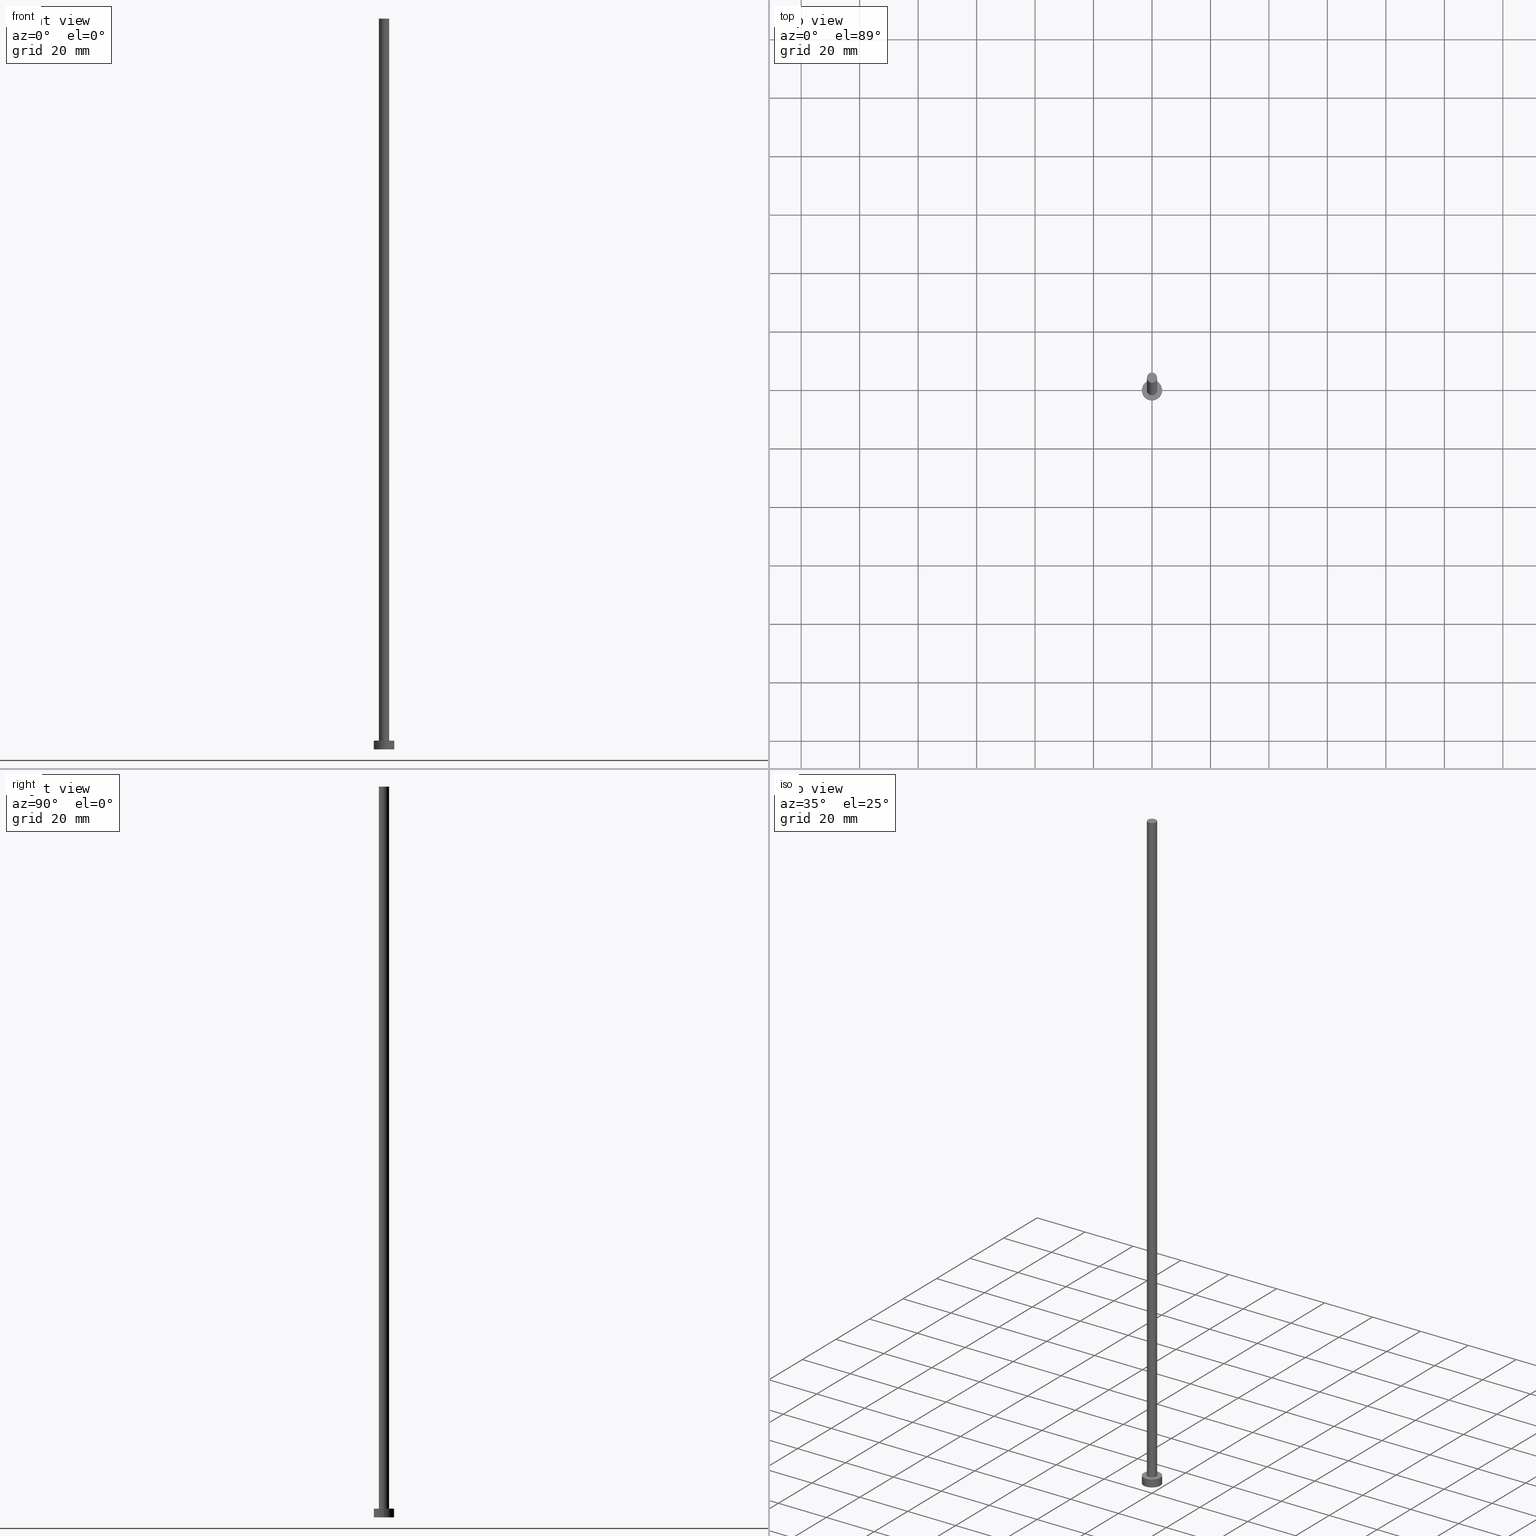
[diagram: canonical four-view strip — front | top / right | iso, engineering-drawing reading convention]
A machine part, canonical four-view strip (front | top / right | iso — engineering-drawing reading convention). The complete STEP part file that produces these views, byte-faithful:
ISO-10303-21;
HEADER;
FILE_DESCRIPTION (( 'STEP AP203' ),
    '1' );
FILE_NAME ('c4b5.STEP',
    '2023-02-13T13:58:57',
    ( '' ),
    ( '' ),
    'SwSTEP 2.0',
    'SolidWorks 2019',
    '' );
FILE_SCHEMA (( 'CONFIG_CONTROL_DESIGN' ));
ENDSEC;

DATA;
#1 = APPROVAL_DATE_TIME ( #178, #17 ) ;
#2 =( NAMED_UNIT ( * ) SI_UNIT ( $, .STERADIAN. ) SOLID_ANGLE_UNIT ( ) );
#3 = ADVANCED_FACE ( 'NONE', ( #167, #128 ), #22, .T. ) ;
#4 = AXIS2_PLACEMENT_3D ( 'NONE', #110, #68, #210 ) ;
#5 = DIRECTION ( 'NONE',  ( 0.000000000000000000, 0.000000000000000000, 1.000000000000000000 ) ) ;
#6 = ORIENTED_EDGE ( 'NONE', *, *, #171, .T. ) ;
#7 = ORIENTED_EDGE ( 'NONE', *, *, #29, .T. ) ;
#8 = DIRECTION ( 'NONE',  ( 1.000000000000000000, 0.000000000000000000, 0.000000000000000000 ) ) ;
#9 = DIRECTION ( 'NONE',  ( -0.000000000000000000, -0.000000000000000000, -1.000000000000000000 ) ) ;
#10 = CARTESIAN_POINT ( 'NONE',  ( -1.750000000000000000, 0.000000000000000000, 250.0000000000000000 ) ) ;
#11 = CYLINDRICAL_SURFACE ( 'NONE', #217, 1.750000000000000000 ) ;
#12 = FACE_OUTER_BOUND ( 'NONE', #200, .T. ) ;
#13 = CARTESIAN_POINT ( 'NONE',  ( -3.500000000000000444, 0.000000000000000000, 0.000000000000000000 ) ) ;
#14 = EDGE_CURVE ( 'NONE', #244, #45, #198, .T. ) ;
#15 = PERSON_AND_ORGANIZATION_ROLE ( 'design_supplier' ) ;
#16 = MECHANICAL_CONTEXT ( 'NONE', #81, 'mechanical' ) ;
#17 = APPROVAL ( #159, 'NEUR�EN�' ) ;
#18 = CC_DESIGN_APPROVAL ( #17, ( #101 ) ) ;
#19 = CALENDAR_DATE ( 2023, 13, 2 ) ;
#20 = EDGE_CURVE ( 'NONE', #219, #222, #117, .T. ) ;
#21 = AXIS2_PLACEMENT_3D ( 'NONE', #83, #165, #61 ) ;
#22 = PLANE ( 'NONE',  #65 ) ;
#23 = CC_DESIGN_APPROVAL ( #247, ( #169 ) ) ;
#24 = ORIENTED_EDGE ( 'NONE', *, *, #38, .F. ) ;
#25 = CARTESIAN_POINT ( 'NONE',  ( 0.000000000000000000, 0.000000000000000000, 3.000000000000000000 ) ) ;
#26 = AXIS2_PLACEMENT_3D ( 'NONE', #173, #136, #30 ) ;
#27 = EDGE_CURVE ( 'NONE', #220, #39, #57, .T. ) ;
#28 = DIRECTION ( 'NONE',  ( -0.000000000000000000, -0.000000000000000000, -1.000000000000000000 ) ) ;
#29 = EDGE_CURVE ( 'NONE', #107, #219, #92, .T. ) ;
#30 = DIRECTION ( 'NONE',  ( 1.000000000000000000, 0.000000000000000000, -0.000000000000000000 ) ) ;
#31 = CARTESIAN_POINT ( 'NONE',  ( 0.000000000000000000, 0.000000000000000000, 250.0000000000000000 ) ) ;
#32 = APPROVAL_PERSON_ORGANIZATION ( #213, #247, #218 ) ;
#33 = EDGE_CURVE ( 'NONE', #107, #62, #70, .T. ) ;
#34 = LINE ( 'NONE', #246, #212 ) ;
#35 = FACE_OUTER_BOUND ( 'NONE', #242, .T. ) ;
#36 = ADVANCED_FACE ( 'NONE', ( #111 ), #154, .T. ) ;
#37 = CALENDAR_DATE ( 2023, 13, 2 ) ;
#38 = EDGE_CURVE ( 'NONE', #62, #107, #193, .T. ) ;
#39 = VERTEX_POINT ( 'NONE', #90 ) ;
#40 = ORIENTED_EDGE ( 'NONE', *, *, #201, .T. ) ;
#41 = AXIS2_PLACEMENT_3D ( 'NONE', #67, #192, #130 ) ;
#42 = PRODUCT_DEFINITION_FORMATION_WITH_SPECIFIED_SOURCE ( 'LIBOVOLN�', '', #255, .NOT_KNOWN. ) ;
#43 = DIRECTION ( 'NONE',  ( 1.000000000000000000, 0.000000000000000000, 0.000000000000000000 ) ) ;
#44 = CC_DESIGN_PERSON_AND_ORGANIZATION_ASSIGNMENT ( #58, #113, ( #255 ) ) ;
#45 = VERTEX_POINT ( 'NONE', #10 ) ;
#46 = AXIS2_PLACEMENT_3D ( 'NONE', #187, #170, #156 ) ;
#47 = ORIENTED_EDGE ( 'NONE', *, *, #229, .F. ) ;
#48 = DIRECTION ( 'NONE',  ( 0.000000000000000000, 0.000000000000000000, 1.000000000000000000 ) ) ;
#49 = CARTESIAN_POINT ( 'NONE',  ( 3.500000000000000444, 4.286263797015737088E-16, 3.000000000000000000 ) ) ;
#50 = AXIS2_PLACEMENT_3D ( 'NONE', #25, #184, #8 ) ;
#51 = FACE_OUTER_BOUND ( 'NONE', #199, .T. ) ;
#52 = DIRECTION ( 'NONE',  ( 1.000000000000000000, 0.000000000000000000, 0.000000000000000000 ) ) ;
#53 = CARTESIAN_POINT ( 'NONE',  ( 0.000000000000000000, 0.000000000000000000, 3.000000000000000000 ) ) ;
#54 = APPLICATION_PROTOCOL_DEFINITION ( 'international standard', 'config_control_design', 1994, #81 ) ;
#55 = COORDINATED_UNIVERSAL_TIME_OFFSET ( 1, 0, .AHEAD. ) ;
#56 = COORDINATED_UNIVERSAL_TIME_OFFSET ( 1, 0, .AHEAD. ) ;
#57 = CIRCLE ( 'NONE', #50, 1.750000000000000000 ) ;
#58 = PERSON_AND_ORGANIZATION ( #80, #135 ) ;
#59 = APPROVAL_STATUS ( 'not_yet_approved' ) ;
#60 = CC_DESIGN_APPROVAL ( #182, ( #42 ) ) ;
#61 = DIRECTION ( 'NONE',  ( 1.000000000000000000, 0.000000000000000000, 0.000000000000000000 ) ) ;
#62 = VERTEX_POINT ( 'NONE', #228 ) ;
#63 = DATE_AND_TIME ( #37, #115 ) ;
#64 = ORIENTED_EDGE ( 'NONE', *, *, #27, .F. ) ;
#65 = AXIS2_PLACEMENT_3D ( 'NONE', #223, #5, #241 ) ;
#66 = ADVANCED_FACE ( 'NONE', ( #12 ), #174, .T. ) ;
#67 = CARTESIAN_POINT ( 'NONE',  ( 0.000000000000000000, 0.000000000000000000, 3.000000000000000000 ) ) ;
#68 = DIRECTION ( 'NONE',  ( 0.000000000000000000, 0.000000000000000000, 1.000000000000000000 ) ) ;
#69 = CARTESIAN_POINT ( 'NONE',  ( 0.000000000000000000, 0.000000000000000000, 3.000000000000000000 ) ) ;
#70 = CIRCLE ( 'NONE', #233, 3.500000000000000444 ) ;
#71 = PRODUCT_DEFINITION_SHAPE ( 'NONE', 'NONE',  #101 ) ;
#72 = DIRECTION ( 'NONE',  ( -1.000000000000000000, 0.000000000000000000, 0.000000000000000000 ) ) ;
#73 = EDGE_CURVE ( 'NONE', #39, #220, #237, .T. ) ;
#74 = CIRCLE ( 'NONE', #239, 3.500000000000000444 ) ;
#75 = DIRECTION ( 'NONE',  ( -0.000000000000000000, -0.000000000000000000, -1.000000000000000000 ) ) ;
#76 = APPROVAL_PERSON_ORGANIZATION ( #97, #17, #238 ) ;
#77 = APPROVAL_DATE_TIME ( #234, #182 ) ;
#78 = PERSON_AND_ORGANIZATION ( #80, #135 ) ;
#79 = PERSON_AND_ORGANIZATION_ROLE ( 'creator' ) ;
#80 = PERSON ( 'NEUR�EN�', 'NEUR�EN�', 'NEUR�EN�', ('NEUR�EN�'), ('NEUR�EN�'), ('NEUR�EN�') ) ;
#81 = APPLICATION_CONTEXT ( 'configuration controlled 3d designs of mechanical parts and assemblies' ) ;
#82 = DATE_AND_TIME ( #179, #194 ) ;
#83 = CARTESIAN_POINT ( 'NONE',  ( 0.000000000000000000, 0.000000000000000000, 0.000000000000000000 ) ) ;
#84 = CIRCLE ( 'NONE', #146, 1.750000000000000000 ) ;
#85 = ORIENTED_EDGE ( 'NONE', *, *, #73, .F. ) ;
#86 = ORIENTED_EDGE ( 'NONE', *, *, #229, .T. ) ;
#87 = CC_DESIGN_SECURITY_CLASSIFICATION ( #169, ( #42 ) ) ;
#88 = ORIENTED_EDGE ( 'NONE', *, *, #151, .T. ) ;
#89 = ADVANCED_FACE ( 'NONE', ( #51 ), #227, .F. ) ;
#90 = CARTESIAN_POINT ( 'NONE',  ( -1.750000000000000000, 0.000000000000000000, 3.000000000000000000 ) ) ;
#91 = FACE_OUTER_BOUND ( 'NONE', #185, .T. ) ;
#92 = LINE ( 'NONE', #225, #127 ) ;
#93 = DIRECTION ( 'NONE',  ( 0.000000000000000000, 0.000000000000000000, 1.000000000000000000 ) ) ;
#94 = APPLICATION_CONTEXT ( 'configuration controlled 3d designs of mechanical parts and assemblies' ) ;
#95 = CARTESIAN_POINT ( 'NONE',  ( 0.000000000000000000, 0.000000000000000000, 250.0000000000000000 ) ) ;
#96 = AXIS2_PLACEMENT_3D ( 'NONE', #251, #158, #186 ) ;
#97 = PERSON_AND_ORGANIZATION ( #80, #135 ) ;
#98 = CALENDAR_DATE ( 2023, 13, 2 ) ;
#99 = COORDINATED_UNIVERSAL_TIME_OFFSET ( 1, 0, .AHEAD. ) ;
#100 = PERSON_AND_ORGANIZATION ( #80, #135 ) ;
#101 = PRODUCT_DEFINITION ( 'NEZN�M�', '', #42, #109 ) ;
#102 = APPROVAL_DATE_TIME ( #63, #247 ) ;
#103 = ORIENTED_EDGE ( 'NONE', *, *, #14, .F. ) ;
#104 = ORIENTED_EDGE ( 'NONE', *, *, #168, .T. ) ;
#105 = ORIENTED_EDGE ( 'NONE', *, *, #201, .F. ) ;
#106 = ORIENTED_EDGE ( 'NONE', *, *, #38, .T. ) ;
#107 = VERTEX_POINT ( 'NONE', #49 ) ;
#108 = CARTESIAN_POINT ( 'NONE',  ( 0.000000000000000000, 0.000000000000000000, 250.0000000000000000 ) ) ;
#109 = DESIGN_CONTEXT ( 'detailed design', #94, 'design' ) ;
#110 = CARTESIAN_POINT ( 'NONE',  ( 0.000000000000000000, 0.000000000000000000, 0.000000000000000000 ) ) ;
#111 = FACE_OUTER_BOUND ( 'NONE', #152, .T. ) ;
#112 = DIRECTION ( 'NONE',  ( 0.000000000000000000, 0.000000000000000000, 1.000000000000000000 ) ) ;
#113 = PERSON_AND_ORGANIZATION_ROLE ( 'design_owner' ) ;
#114 = DIRECTION ( 'NONE',  ( 0.000000000000000000, 0.000000000000000000, 1.000000000000000000 ) ) ;
#115 = LOCAL_TIME ( 14, 58, 57.00000000000000000, #56 ) ;
#116 = PERSON_AND_ORGANIZATION ( #80, #135 ) ;
#117 = CIRCLE ( 'NONE', #21, 3.500000000000000444 ) ;
#118 = PERSON_AND_ORGANIZATION ( #80, #135 ) ;
#119 = CARTESIAN_POINT ( 'NONE',  ( 0.000000000000000000, 0.000000000000000000, 0.000000000000000000 ) ) ;
#120 = CC_DESIGN_PERSON_AND_ORGANIZATION_ASSIGNMENT ( #116, #142, ( #42 ) ) ;
#121 = ORIENTED_EDGE ( 'NONE', *, *, #29, .F. ) ;
#122 = ORIENTED_EDGE ( 'NONE', *, *, #14, .T. ) ;
#123 = APPROVAL_PERSON_ORGANIZATION ( #78, #182, #162 ) ;
#124 = ORIENTED_EDGE ( 'NONE', *, *, #27, .T. ) ;
#125 = UNCERTAINTY_MEASURE_WITH_UNIT (LENGTH_MEASURE( 1.000000000000000082E-05 ), #163, 'distance_accuracy_value', 'NONE');
#126 = CC_DESIGN_DATE_AND_TIME_ASSIGNMENT ( #197, #177, ( #101 ) ) ;
#127 = VECTOR ( 'NONE', #248, 1000.000000000000000 ) ;
#128 = FACE_OUTER_BOUND ( 'NONE', #181, .T. ) ;
#129 = ORIENTED_EDGE ( 'NONE', *, *, #73, .T. ) ;
#130 = DIRECTION ( 'NONE',  ( -1.000000000000000000, 0.000000000000000000, 0.000000000000000000 ) ) ;
#131 = LINE ( 'NONE', #206, #189 ) ;
#132 = AXIS2_PLACEMENT_3D ( 'NONE', #149, #221, #43 ) ;
#133 = PRODUCT_RELATED_PRODUCT_CATEGORY ( 'detail', '', ( #255 ) ) ;
#134 = DIRECTION ( 'NONE',  ( 1.000000000000000000, 0.000000000000000000, 0.000000000000000000 ) ) ;
#135 = ORGANIZATION ( 'NEUR�EN�', 'NEUR�EN�', '' ) ;
#136 = DIRECTION ( 'NONE',  ( 0.000000000000000000, 0.000000000000000000, 1.000000000000000000 ) ) ;
#137 = DIRECTION ( 'NONE',  ( 0.000000000000000000, 0.000000000000000000, 1.000000000000000000 ) ) ;
#138 = CLOSED_SHELL ( 'NONE', ( #191, #157, #232, #3, #89, #36, #66 ) ) ;
#139 = DATE_TIME_ROLE ( 'classification_date' ) ;
#140 =( NAMED_UNIT ( * ) PLANE_ANGLE_UNIT ( ) SI_UNIT ( $, .RADIAN. ) );
#141 = LOCAL_TIME ( 14, 58, 57.00000000000000000, #55 ) ;
#142 = PERSON_AND_ORGANIZATION_ROLE ( 'creator' ) ;
#143 = AXIS2_PLACEMENT_3D ( 'NONE', #108, #9, #72 ) ;
#144 = APPLICATION_PROTOCOL_DEFINITION ( 'international standard', 'config_control_design', 1994, #94 ) ;
#145 = COORDINATED_UNIVERSAL_TIME_OFFSET ( 1, 0, .AHEAD. ) ;
#146 = AXIS2_PLACEMENT_3D ( 'NONE', #31, #93, #52 ) ;
#147 = ORIENTED_EDGE ( 'NONE', *, *, #20, .F. ) ;
#148 = ORIENTED_EDGE ( 'NONE', *, *, #168, .F. ) ;
#149 = CARTESIAN_POINT ( 'NONE',  ( 0.000000000000000000, 0.000000000000000000, 250.0000000000000000 ) ) ;
#150 = ORIENTED_EDGE ( 'NONE', *, *, #20, .T. ) ;
#151 = EDGE_CURVE ( 'NONE', #244, #220, #34, .T. ) ;
#152 = EDGE_LOOP ( 'NONE', ( #203, #47, #6, #129 ) ) ;
#153 = DIRECTION ( 'NONE',  ( 1.000000000000000000, 0.000000000000000000, 0.000000000000000000 ) ) ;
#154 = CYLINDRICAL_SURFACE ( 'NONE', #143, 1.750000000000000000 ) ;
#155 = DIRECTION ( 'NONE',  ( 1.000000000000000000, 0.000000000000000000, 0.000000000000000000 ) ) ;
#156 = DIRECTION ( 'NONE',  ( 1.000000000000000000, 0.000000000000000000, 0.000000000000000000 ) ) ;
#157 = ADVANCED_FACE ( 'NONE', ( #190 ), #245, .T. ) ;
#158 = DIRECTION ( 'NONE',  ( -0.000000000000000000, -0.000000000000000000, -1.000000000000000000 ) ) ;
#159 = APPROVAL_STATUS ( 'not_yet_approved' ) ;
#160 = CARTESIAN_POINT ( 'NONE',  ( 1.750000000000000000, 2.143131898507868297E-16, 250.0000000000000000 ) ) ;
#161 = LOCAL_TIME ( 14, 58, 57.00000000000000000, #145 ) ;
#162 = APPROVAL_ROLE ( '' ) ;
#163 =( LENGTH_UNIT ( ) NAMED_UNIT ( * ) SI_UNIT ( .MILLI., .METRE. ) );
#164 =( GEOMETRIC_REPRESENTATION_CONTEXT ( 3 ) GLOBAL_UNCERTAINTY_ASSIGNED_CONTEXT ( ( #125 ) ) GLOBAL_UNIT_ASSIGNED_CONTEXT ( ( #163, #140, #2 ) ) REPRESENTATION_CONTEXT ( 'NONE', 'WORKASPACE' ) );
#165 = DIRECTION ( 'NONE',  ( 0.000000000000000000, 0.000000000000000000, 1.000000000000000000 ) ) ;
#166 = ORIENTED_EDGE ( 'NONE', *, *, #33, .T. ) ;
#167 = FACE_BOUND ( 'NONE', #180, .T. ) ;
#168 = EDGE_CURVE ( 'NONE', #62, #222, #208, .T. ) ;
#169 = SECURITY_CLASSIFICATION ( '', '', #236 ) ;
#170 = DIRECTION ( 'NONE',  ( 0.000000000000000000, 0.000000000000000000, 1.000000000000000000 ) ) ;
#171 = EDGE_CURVE ( 'NONE', #45, #39, #131, .T. ) ;
#172 = CARTESIAN_POINT ( 'NONE',  ( 1.750000000000000000, 2.143131898507868297E-16, 3.000000000000000000 ) ) ;
#173 = CARTESIAN_POINT ( 'NONE',  ( 0.000000000000000000, 0.000000000000000000, 250.0000000000000000 ) ) ;
#174 = PLANE ( 'NONE',  #26 ) ;
#175 = CYLINDRICAL_SURFACE ( 'NONE', #96, 3.500000000000000444 ) ;
#176 = COORDINATED_UNIVERSAL_TIME_OFFSET ( 1, 0, .AHEAD. ) ;
#177 = DATE_TIME_ROLE ( 'creation_date' ) ;
#178 = DATE_AND_TIME ( #98, #226 ) ;
#179 = CALENDAR_DATE ( 2023, 13, 2 ) ;
#180 = EDGE_LOOP ( 'NONE', ( #85, #64 ) ) ;
#181 = EDGE_LOOP ( 'NONE', ( #106, #166 ) ) ;
#182 = APPROVAL ( #235, 'NEUR�EN�' ) ;
#183 = SHAPE_DEFINITION_REPRESENTATION ( #71, #216 ) ;
#184 = DIRECTION ( 'NONE',  ( 0.000000000000000000, 0.000000000000000000, 1.000000000000000000 ) ) ;
#185 = EDGE_LOOP ( 'NONE', ( #103, #88, #124, #205 ) ) ;
#186 = DIRECTION ( 'NONE',  ( -1.000000000000000000, 0.000000000000000000, 0.000000000000000000 ) ) ;
#187 = CARTESIAN_POINT ( 'NONE',  ( 0.000000000000000000, 0.000000000000000000, 3.000000000000000000 ) ) ;
#188 = DIRECTION ( 'NONE',  ( -0.000000000000000000, -0.000000000000000000, -1.000000000000000000 ) ) ;
#189 = VECTOR ( 'NONE', #28, 1000.000000000000000 ) ;
#190 = FACE_OUTER_BOUND ( 'NONE', #202, .T. ) ;
#191 = ADVANCED_FACE ( 'NONE', ( #91 ), #11, .T. ) ;
#192 = DIRECTION ( 'NONE',  ( -0.000000000000000000, -0.000000000000000000, -1.000000000000000000 ) ) ;
#193 = CIRCLE ( 'NONE', #249, 3.500000000000000444 ) ;
#194 = LOCAL_TIME ( 14, 58, 57.00000000000000000, #99 ) ;
#195 = DIRECTION ( 'NONE',  ( 1.000000000000000000, 0.000000000000000000, 0.000000000000000000 ) ) ;
#196 = VECTOR ( 'NONE', #188, 1000.000000000000000 ) ;
#197 = DATE_AND_TIME ( #215, #161 ) ;
#198 = CIRCLE ( 'NONE', #132, 1.750000000000000000 ) ;
#199 = EDGE_LOOP ( 'NONE', ( #105, #147 ) ) ;
#200 = EDGE_LOOP ( 'NONE', ( #86, #122 ) ) ;
#201 = EDGE_CURVE ( 'NONE', #222, #219, #74, .T. ) ;
#202 = EDGE_LOOP ( 'NONE', ( #240, #7, #150, #148 ) ) ;
#203 = ORIENTED_EDGE ( 'NONE', *, *, #151, .F. ) ;
#204 = CC_DESIGN_PERSON_AND_ORGANIZATION_ASSIGNMENT ( #214, #254, ( #169 ) ) ;
#205 = ORIENTED_EDGE ( 'NONE', *, *, #171, .F. ) ;
#206 = CARTESIAN_POINT ( 'NONE',  ( -1.750000000000000000, 0.000000000000000000, 250.0000000000000000 ) ) ;
#207 = DIRECTION ( 'NONE',  ( -1.000000000000000000, 0.000000000000000000, 0.000000000000000000 ) ) ;
#208 = LINE ( 'NONE', #211, #196 ) ;
#209 = CC_DESIGN_PERSON_AND_ORGANIZATION_ASSIGNMENT ( #100, #15, ( #42 ) ) ;
#210 = DIRECTION ( 'NONE',  ( 1.000000000000000000, 0.000000000000000000, -0.000000000000000000 ) ) ;
#211 = CARTESIAN_POINT ( 'NONE',  ( -3.500000000000000444, 0.000000000000000000, 3.000000000000000000 ) ) ;
#212 = VECTOR ( 'NONE', #75, 1000.000000000000000 ) ;
#213 = PERSON_AND_ORGANIZATION ( #80, #135 ) ;
#214 = PERSON_AND_ORGANIZATION ( #80, #135 ) ;
#215 = CALENDAR_DATE ( 2023, 13, 2 ) ;
#216 = ADVANCED_BREP_SHAPE_REPRESENTATION ( 'c4b5', ( #224, #252 ), #164 ) ;
#217 = AXIS2_PLACEMENT_3D ( 'NONE', #95, #230, #207 ) ;
#218 = APPROVAL_ROLE ( '' ) ;
#219 = VERTEX_POINT ( 'NONE', #250 ) ;
#220 = VERTEX_POINT ( 'NONE', #172 ) ;
#221 = DIRECTION ( 'NONE',  ( 0.000000000000000000, 0.000000000000000000, 1.000000000000000000 ) ) ;
#222 = VERTEX_POINT ( 'NONE', #13 ) ;
#223 = CARTESIAN_POINT ( 'NONE',  ( 0.000000000000000000, 0.000000000000000000, 3.000000000000000000 ) ) ;
#224 = MANIFOLD_SOLID_BREP ( 'P�idat vysunut�m3', #138 ) ;
#225 = CARTESIAN_POINT ( 'NONE',  ( 3.500000000000000444, 4.286263797015737088E-16, 3.000000000000000000 ) ) ;
#226 = LOCAL_TIME ( 14, 58, 57.00000000000000000, #176 ) ;
#227 = PLANE ( 'NONE',  #4 ) ;
#228 = CARTESIAN_POINT ( 'NONE',  ( -3.500000000000000444, 0.000000000000000000, 3.000000000000000000 ) ) ;
#229 = EDGE_CURVE ( 'NONE', #45, #244, #84, .T. ) ;
#230 = DIRECTION ( 'NONE',  ( -0.000000000000000000, -0.000000000000000000, -1.000000000000000000 ) ) ;
#231 = CARTESIAN_POINT ( 'NONE',  ( 0.000000000000000000, 0.000000000000000000, 0.000000000000000000 ) ) ;
#232 = ADVANCED_FACE ( 'NONE', ( #35 ), #175, .T. ) ;
#233 = AXIS2_PLACEMENT_3D ( 'NONE', #53, #48, #153 ) ;
#234 = DATE_AND_TIME ( #19, #141 ) ;
#235 = APPROVAL_STATUS ( 'not_yet_approved' ) ;
#236 = SECURITY_CLASSIFICATION_LEVEL ( 'unclassified' ) ;
#237 = CIRCLE ( 'NONE', #46, 1.750000000000000000 ) ;
#238 = APPROVAL_ROLE ( '' ) ;
#239 = AXIS2_PLACEMENT_3D ( 'NONE', #231, #137, #134 ) ;
#240 = ORIENTED_EDGE ( 'NONE', *, *, #33, .F. ) ;
#241 = DIRECTION ( 'NONE',  ( 1.000000000000000000, 0.000000000000000000, -0.000000000000000000 ) ) ;
#242 = EDGE_LOOP ( 'NONE', ( #121, #24, #104, #40 ) ) ;
#243 = CC_DESIGN_DATE_AND_TIME_ASSIGNMENT ( #82, #139, ( #169 ) ) ;
#244 = VERTEX_POINT ( 'NONE', #160 ) ;
#245 = CYLINDRICAL_SURFACE ( 'NONE', #41, 3.500000000000000444 ) ;
#246 = CARTESIAN_POINT ( 'NONE',  ( 1.750000000000000000, 2.143131898507868297E-16, 250.0000000000000000 ) ) ;
#247 = APPROVAL ( #59, 'NEUR�EN�' ) ;
#248 = DIRECTION ( 'NONE',  ( -0.000000000000000000, -0.000000000000000000, -1.000000000000000000 ) ) ;
#249 = AXIS2_PLACEMENT_3D ( 'NONE', #69, #112, #155 ) ;
#250 = CARTESIAN_POINT ( 'NONE',  ( 3.500000000000000444, 4.286263797015737088E-16, 0.000000000000000000 ) ) ;
#251 = CARTESIAN_POINT ( 'NONE',  ( 0.000000000000000000, 0.000000000000000000, 3.000000000000000000 ) ) ;
#252 = AXIS2_PLACEMENT_3D ( 'NONE', #119, #114, #195 ) ;
#253 = CC_DESIGN_PERSON_AND_ORGANIZATION_ASSIGNMENT ( #118, #79, ( #101 ) ) ;
#254 = PERSON_AND_ORGANIZATION_ROLE ( 'classification_officer' ) ;
#255 = PRODUCT ( 'c4b5', 'c4b5', '', ( #16 ) ) ;
ENDSEC;
END-ISO-10303-21;
